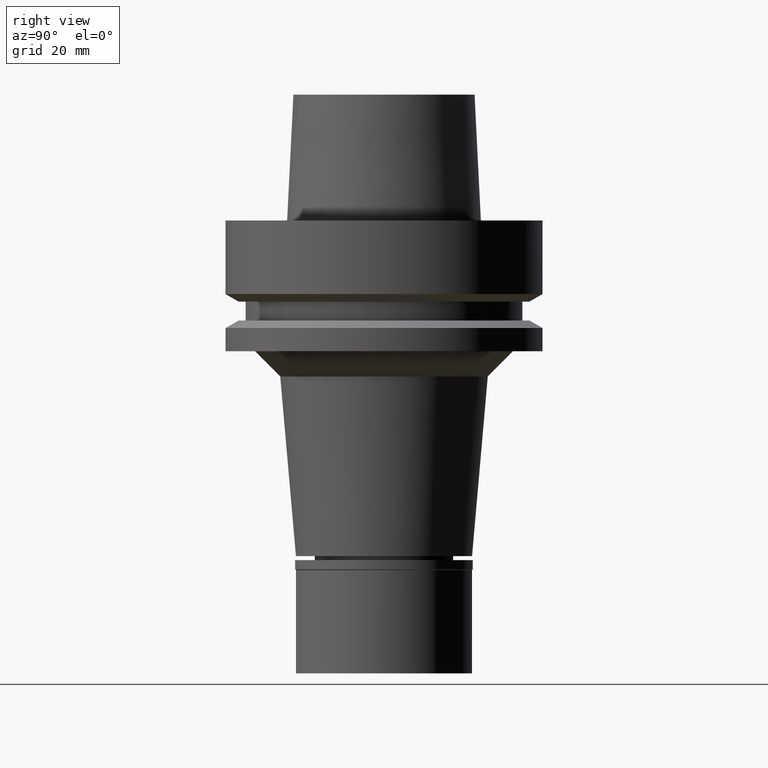
[diagram: clean part render]
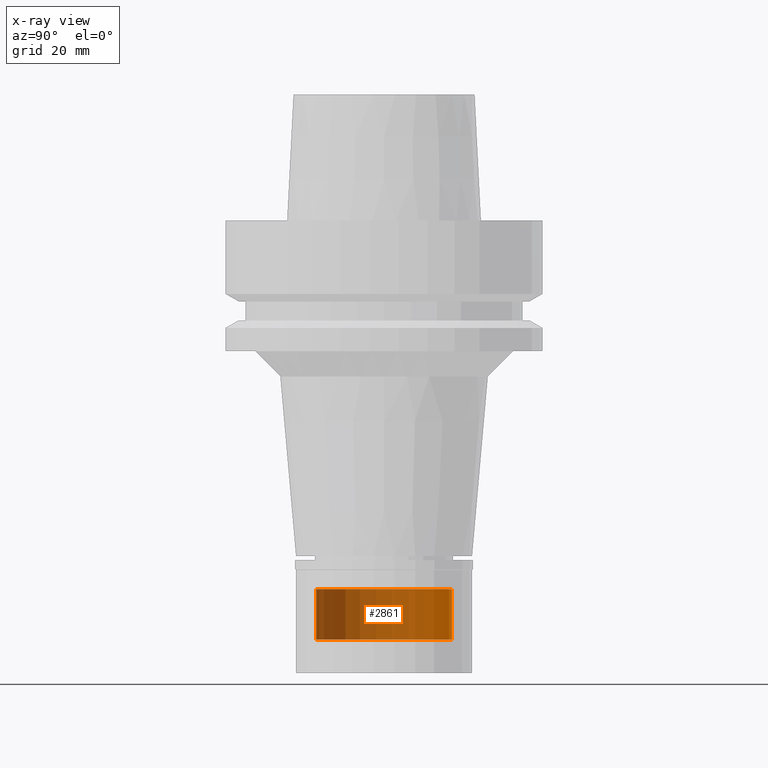
[diagram: x-ray — body ghosted, one internal face saturated and labeled with its STEP entity id]
A machine part, right view, then the same camera in x-ray: the body is ghosted and one INTERNAL B-rep face — a face not visible from any outside direction — is saturated and labeled: STEP entity #2861.
In plain terms, the highlighted cylindrical surface (partial cylindrical patch) has radius 13.5 mm, axis along (0, 0, 1).
Its self-contained STEP definition (entity closure, byte-faithful):
#27 = CARTESIAN_POINT ( 'NONE',  ( 0.0000000000000000000, 0.0000000000000000000, -83.29999999999999716 ) ) ;
#102 = DIRECTION ( 'NONE',  ( 0.0000000000000000000, -1.000000000000000000, 0.0000000000000000000 ) ) ;
#137 = EDGE_CURVE ( 'NONE', #574, #1712, #2405, .T. ) ;
#140 = LINE ( 'NONE', #2533, #1594 ) ;
#143 = AXIS2_PLACEMENT_3D ( 'NONE', #27, #1876, #768 ) ;
#157 = AXIS2_PLACEMENT_3D ( 'NONE', #375, #1049, #1763 ) ;
#188 = DIRECTION ( 'NONE',  ( 0.0000000000000000000, 0.0000000000000000000, -1.000000000000000000 ) ) ;
#364 = CARTESIAN_POINT ( 'NONE',  ( 0.0000000000000000000, -13.50000000000000000, -73.29999999999999716 ) ) ;
#375 = CARTESIAN_POINT ( 'NONE',  ( 0.0000000000000000000, 0.0000000000000000000, -88.71500000000000341 ) ) ;
#574 = VERTEX_POINT ( 'NONE', #762 ) ;
#613 = EDGE_CURVE ( 'NONE', #1667, #2725, #140, .T. ) ;
#762 = CARTESIAN_POINT ( 'NONE',  ( 0.0000000000000000000, 13.50000000000000000, -73.29999999999999716 ) ) ;
#768 = DIRECTION ( 'NONE',  ( 0.0000000000000000000, 1.000000000000000000, 0.0000000000000000000 ) ) ;
#1024 = DIRECTION ( 'NONE',  ( 0.0000000000000000000, 0.0000000000000000000, -1.000000000000000000 ) ) ;
#1049 = DIRECTION ( 'NONE',  ( 0.0000000000000000000, 0.0000000000000000000, 1.000000000000000000 ) ) ;
#1061 = FACE_OUTER_BOUND ( 'NONE', #2819, .T. ) ;
#1151 = ORIENTED_EDGE ( 'NONE', *, *, #137, .T. ) ;
#1164 = CIRCLE ( 'NONE', #1547, 13.50000000000000000 ) ;
#1312 = EDGE_CURVE ( 'NONE', #1712, #2725, #1399, .T. ) ;
#1399 = CIRCLE ( 'NONE', #143, 13.50000000000000000 ) ;
#1485 = CYLINDRICAL_SURFACE ( 'NONE', #157, 13.50000000000000000 ) ;
#1547 = AXIS2_PLACEMENT_3D ( 'NONE', #2297, #2479, #102 ) ;
#1594 = VECTOR ( 'NONE', #1024, 1000.000000000000000 ) ;
#1667 = VERTEX_POINT ( 'NONE', #364 ) ;
#1712 = VERTEX_POINT ( 'NONE', #2820 ) ;
#1763 = DIRECTION ( 'NONE',  ( 0.0000000000000000000, 1.000000000000000000, 0.0000000000000000000 ) ) ;
#1867 = VECTOR ( 'NONE', #188, 1000.000000000000000 ) ;
#1876 = DIRECTION ( 'NONE',  ( 0.0000000000000000000, 0.0000000000000000000, 1.000000000000000000 ) ) ;
#2119 = ORIENTED_EDGE ( 'NONE', *, *, #613, .F. ) ;
#2215 = CARTESIAN_POINT ( 'NONE',  ( 0.0000000000000000000, 13.50000000000000000, -73.29999999999999716 ) ) ;
#2250 = ORIENTED_EDGE ( 'NONE', *, *, #2410, .T. ) ;
#2297 = CARTESIAN_POINT ( 'NONE',  ( 0.0000000000000000000, 0.0000000000000000000, -73.29999999999999716 ) ) ;
#2405 = LINE ( 'NONE', #2215, #1867 ) ;
#2410 = EDGE_CURVE ( 'NONE', #1667, #574, #1164, .T. ) ;
#2474 = ORIENTED_EDGE ( 'NONE', *, *, #1312, .T. ) ;
#2479 = DIRECTION ( 'NONE',  ( 0.0000000000000000000, 0.0000000000000000000, -1.000000000000000000 ) ) ;
#2533 = CARTESIAN_POINT ( 'NONE',  ( 0.0000000000000000000, -13.50000000000000000, -73.29999999999999716 ) ) ;
#2725 = VERTEX_POINT ( 'NONE', #2831 ) ;
#2819 = EDGE_LOOP ( 'NONE', ( #2474, #2119, #2250, #1151 ) ) ;
#2820 = CARTESIAN_POINT ( 'NONE',  ( 0.0000000000000000000, 13.50000000000000000, -83.29999999999999716 ) ) ;
#2831 = CARTESIAN_POINT ( 'NONE',  ( 0.0000000000000000000, -13.50000000000000000, -83.29999999999999716 ) ) ;
#2861 = ADVANCED_FACE ( 'NONE', ( #1061 ), #1485, .T. ) ;